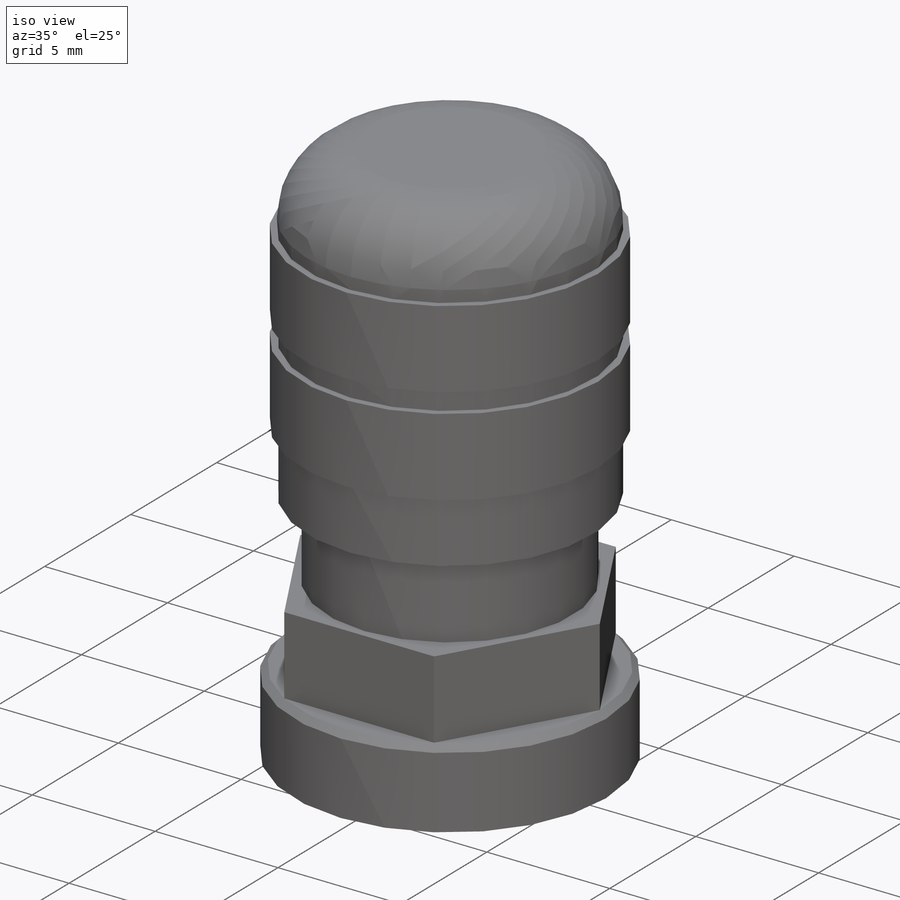
[diagram: iso view]
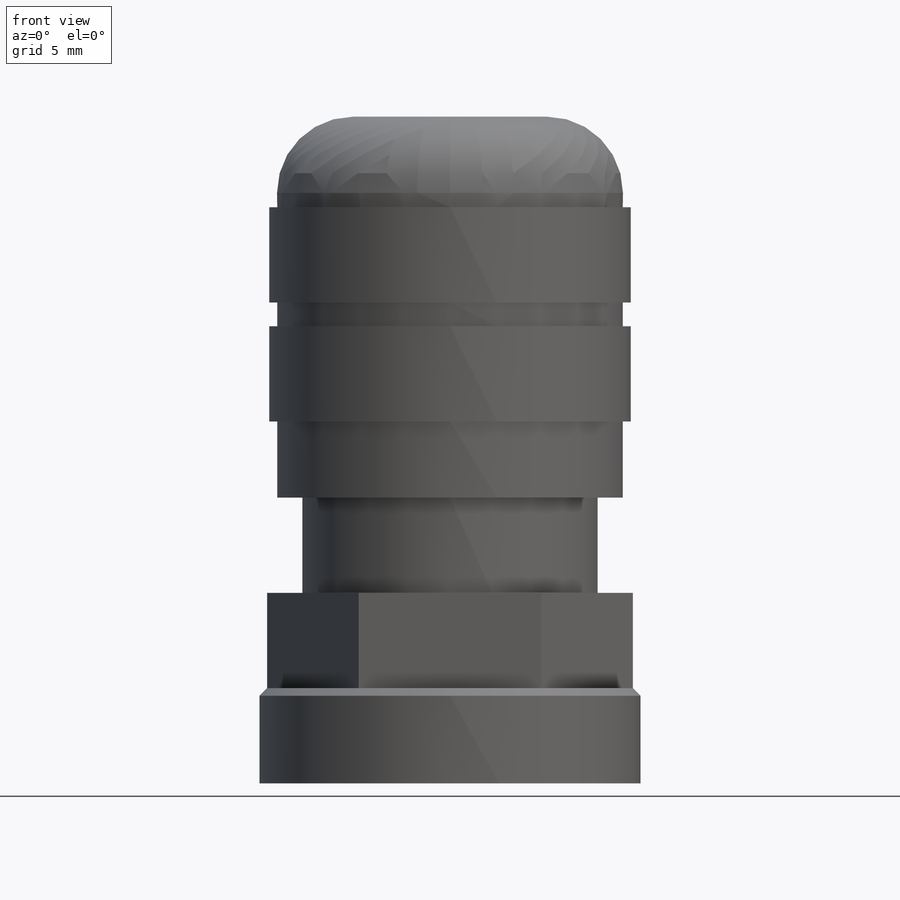
[diagram: front view]
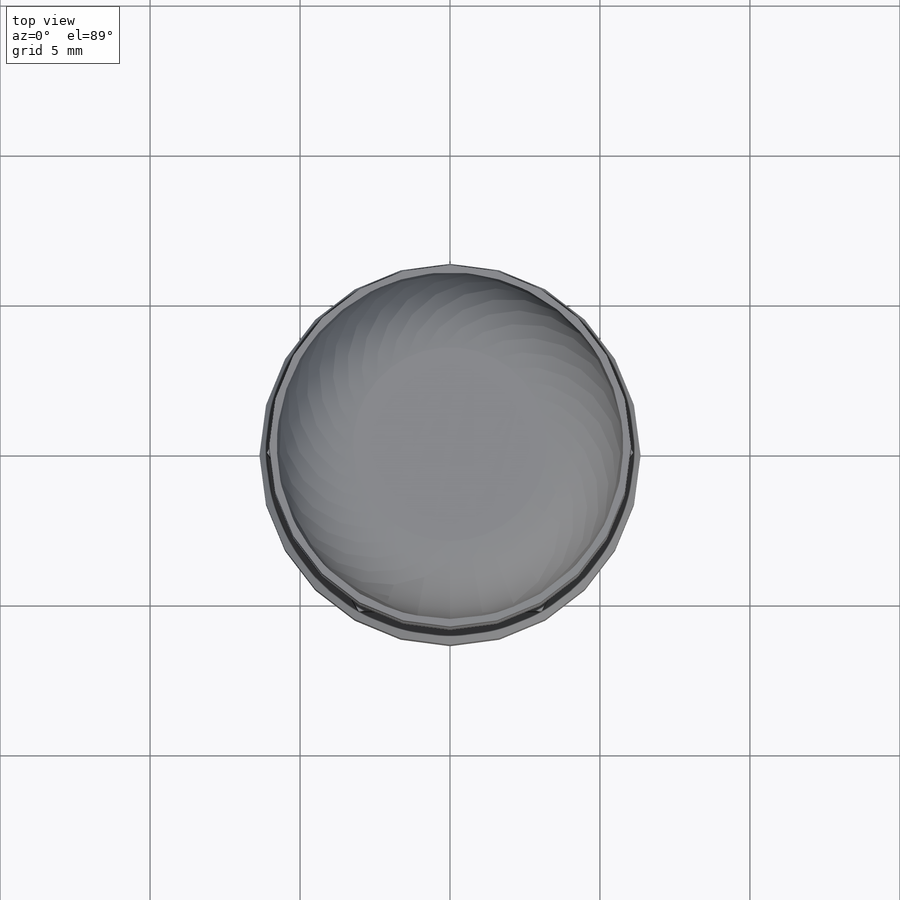
[diagram: top view]
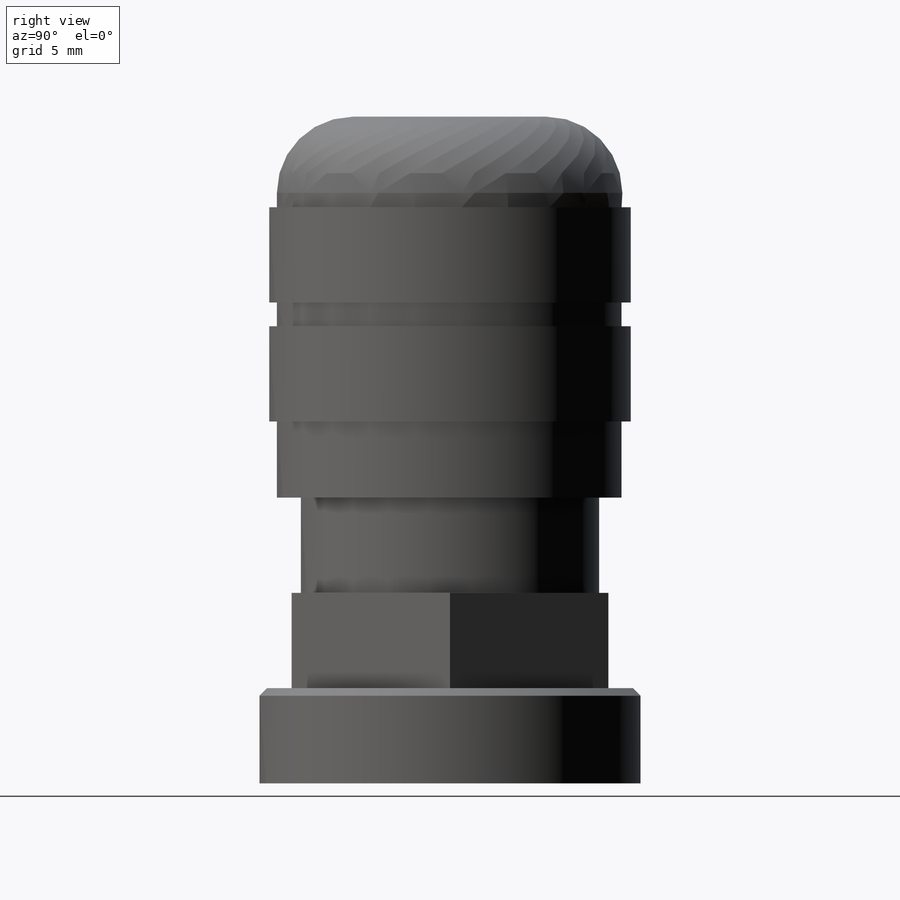
[diagram: right view]
SOLIDWORKS PART (.sldprt)
format: sldprt  version: not decoded by parser v0  size: 239,104 bytes
history: native  units: mm
features: sketch x4, extrude x2, material x1, chamfer x1, revolve x1, cut_extrude x1 (+11 scaffold rows collapsed)
feature tree (21):
  scaffold x11  (default folders/planes/origin — collapsed)
  material  "Chrome Stainless Steel"
  sketch  "Sketch1"  dims[D1=12.7mm]
  extrude  "Extrude1"  Depth=3.175mm
  chamfer  "Chamfer1"  Distance=0.254mm Angle=45deg
  sketch  "Sketch2"
  extrude  "Extrude2"  Depth=3.175mm
  sketch  "Sketch4"  dims[D6=2.54mm D1=12.7mm D2=3.175mm D3=~0.79375mm D4=3.175mm D5=0.254mm D7=1.27mm]
  revolve  "Revolve1"  Angle=360deg
  sketch  "Sketch5"  dims[D1=7.9375mm]
  cut_extrude  "Extrude4"  Depth=12.7mm
decode coverage: 8 of 9 modeling features carry decoded parameters
note: ~ marks probable driven/reference dimensions
note: suppression state not decoded; provenance and decode notes live in map.json
